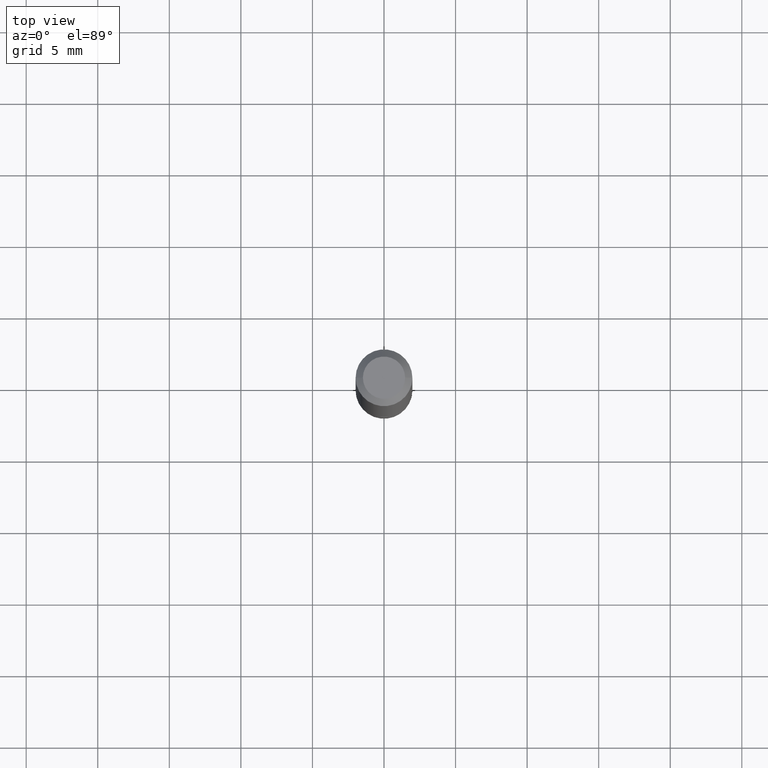
[diagram: clean part render]
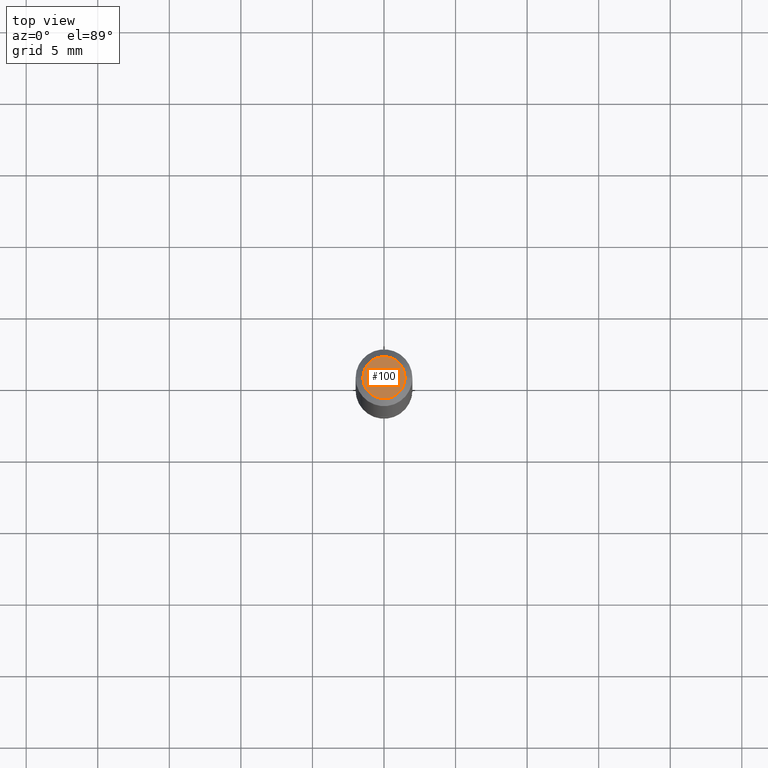
[diagram: same view with one face highlighted and labeled with its STEP entity id]
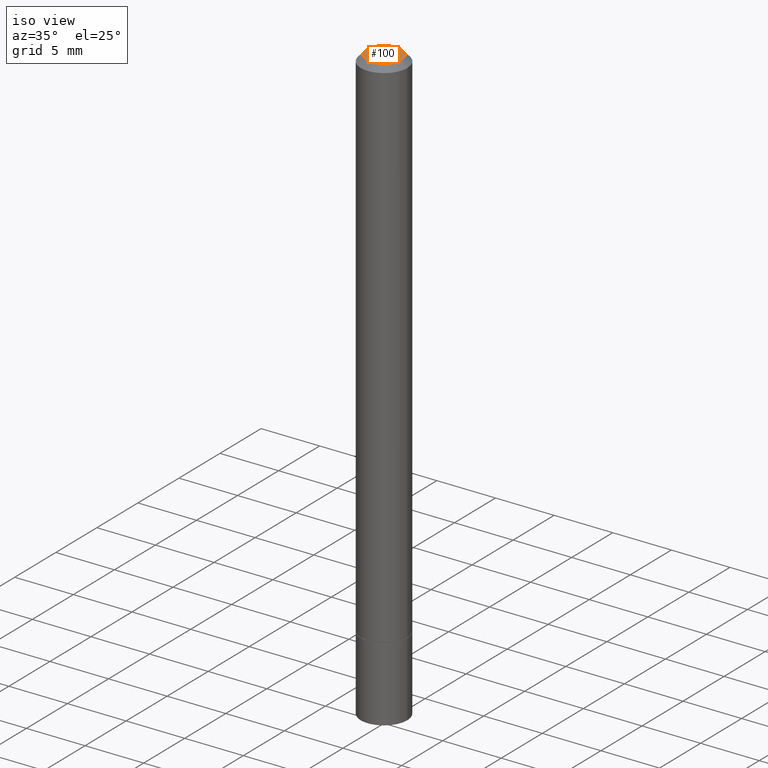
[diagram: same view with one face highlighted and labeled with its STEP entity id]
A machine part, top view. The second image highlights one B-rep face of the part: STEP entity #100.
A second angle (iso view) of the same face is appended — the face is thin or edge-on in the first view.
In plain terms, the highlighted planar face has unit normal (0, -0, -1).
Its self-contained STEP definition (entity closure, byte-faithful):
#23 = CARTESIAN_POINT ( 'NONE',  ( 0.05809999999999978376, -5.021147270366713481E-16, -1.707404996039847118E-17 ) ) ;
#41 = ORIENTED_EDGE ( 'NONE', *, *, #354, .T. ) ;
#50 = VERTEX_POINT ( 'NONE', #23 ) ;
#73 = DIRECTION ( 'NONE',  ( 1.000000000000000000, -6.982962677686266711E-15, 4.877663522807080384E-29 ) ) ;
#78 = CARTESIAN_POINT ( 'NONE',  ( 4.175405657340879278E-46, -5.961372681521788801E-32, -1.707404996040164512E-17 ) ) ;
#80 = CARTESIAN_POINT ( 'NONE',  ( 4.057101315735705442E-16, 0.05809999999999978376, -2.113920907669868157E-16 ) ) ;
#98 = AXIS2_PLACEMENT_3D ( 'NONE', #78, #371, #227 ) ;
#100 = ADVANCED_FACE ( 'NONE', ( #322 ), #111, .F. ) ;
#111 = PLANE ( 'NONE',  #361 ) ;
#179 = DIRECTION ( 'NONE',  ( 2.438088387897960049E-29, -3.491481338843145188E-15, -1.000000000000000000 ) ) ;
#186 = EDGE_LOOP ( 'NONE', ( #369, #41 ) ) ;
#220 = CARTESIAN_POINT ( 'NONE',  ( 4.175405657340879278E-46, -5.961372681521788801E-32, -1.707404996040164512E-17 ) ) ;
#224 = CARTESIAN_POINT ( 'NONE',  ( -0.05809999999999978376, 4.406249449620016509E-16, -1.707404996040460643E-17 ) ) ;
#227 = DIRECTION ( 'NONE',  ( 1.000000000000000000, -6.982962677686266711E-15, 4.877663522807080384E-29 ) ) ;
#240 = EDGE_CURVE ( 'NONE', #378, #50, #266, .T. ) ;
#266 = CIRCLE ( 'NONE', #282, 0.05809999999999978376 ) ;
#282 = AXIS2_PLACEMENT_3D ( 'NONE', #220, #336, #73 ) ;
#322 = FACE_OUTER_BOUND ( 'NONE', #186, .T. ) ;
#336 = DIRECTION ( 'NONE',  ( -2.445468806185136597E-29, 3.491481338843145583E-15, 1.000000000000000000 ) ) ;
#339 = CIRCLE ( 'NONE', #98, 0.05809999999999978376 ) ;
#354 = EDGE_CURVE ( 'NONE', #50, #378, #339, .T. ) ;
#361 = AXIS2_PLACEMENT_3D ( 'NONE', #80, #179, #386 ) ;
#369 = ORIENTED_EDGE ( 'NONE', *, *, #240, .T. ) ;
#371 = DIRECTION ( 'NONE',  ( -2.445468806185136597E-29, 3.491481338843145583E-15, 1.000000000000000000 ) ) ;
#378 = VERTEX_POINT ( 'NONE', #224 ) ;
#386 = DIRECTION ( 'NONE',  ( -1.000000000000000000, 6.982962677686265922E-15, -4.876176775795935793E-29 ) ) ;